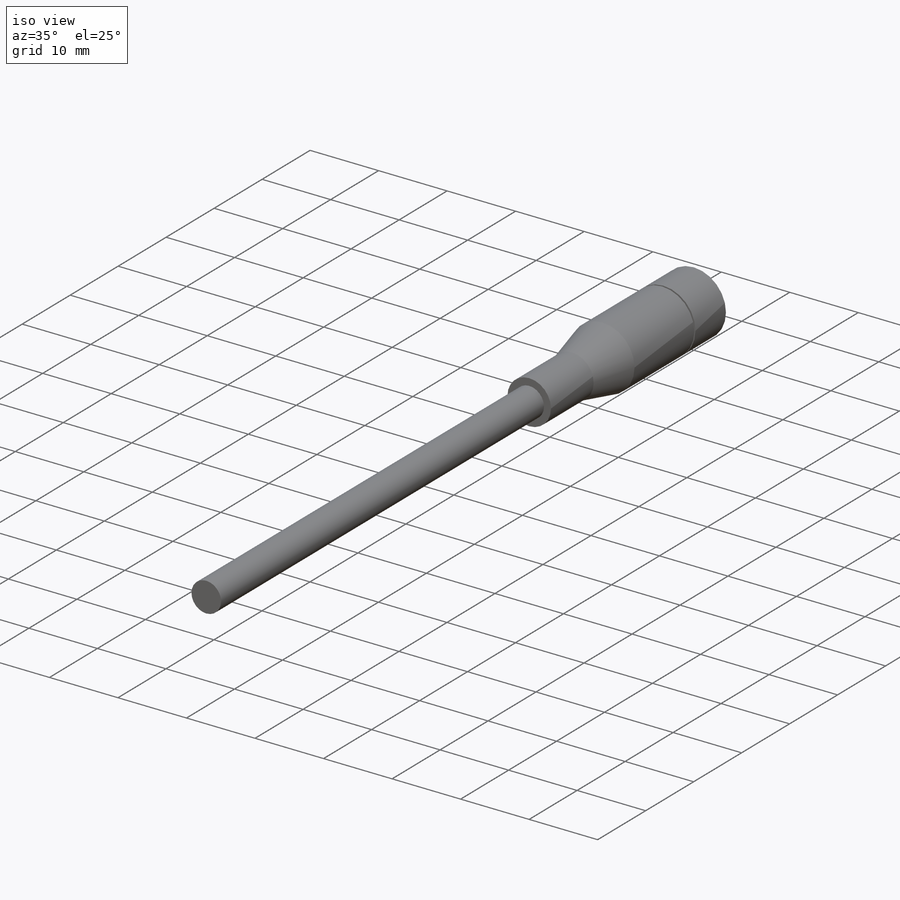
[diagram: iso view]
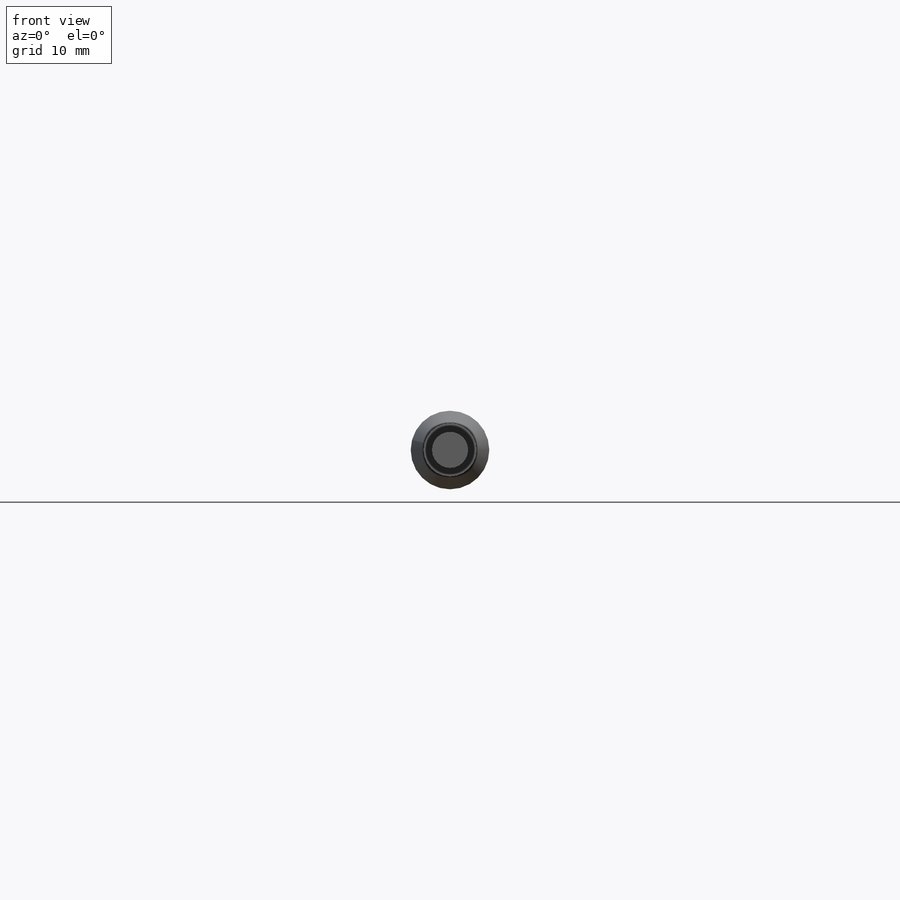
[diagram: front view]
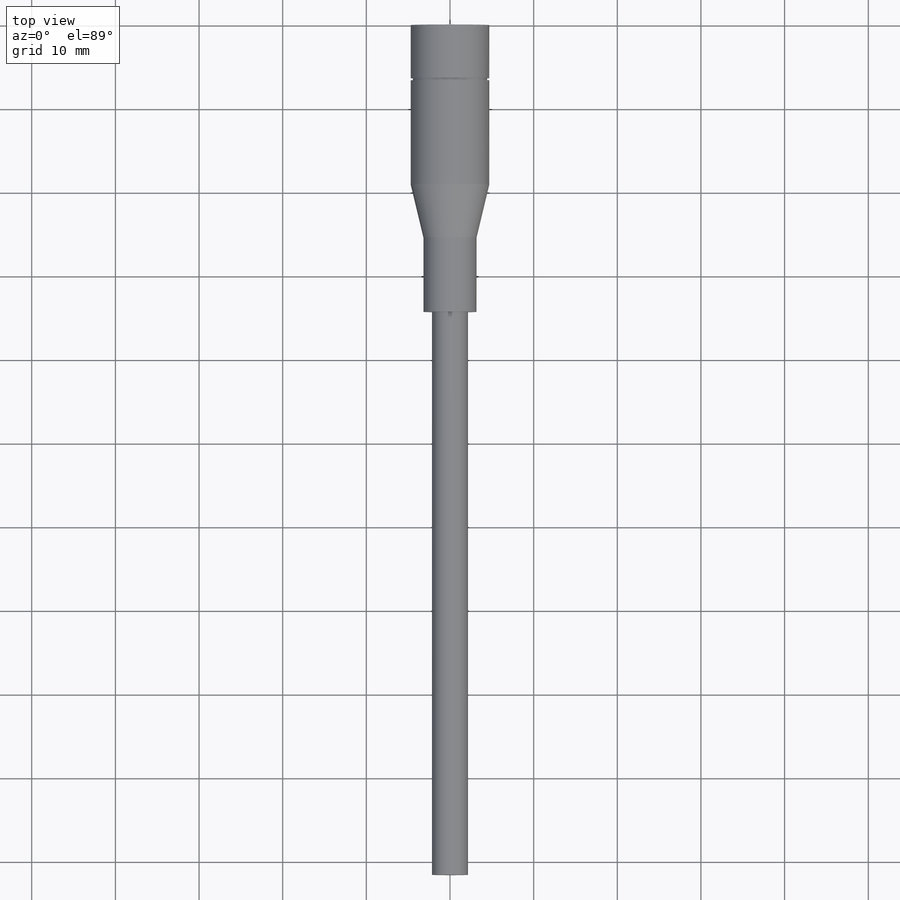
[diagram: top view]
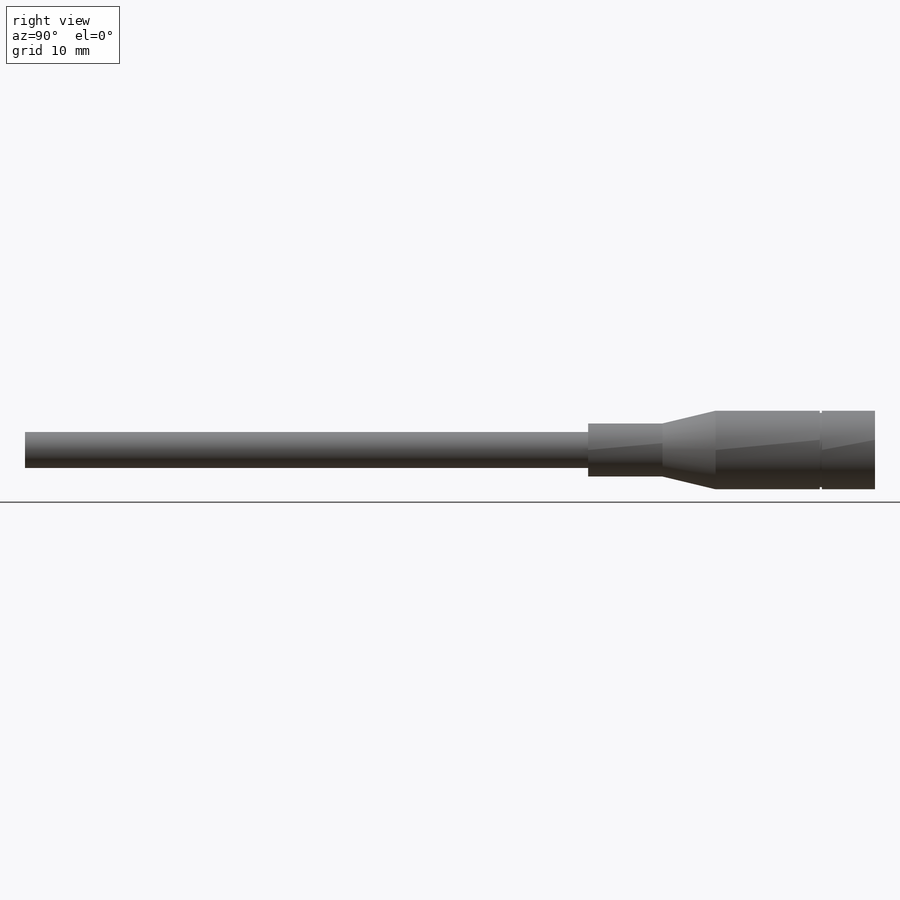
[diagram: right view]
SOLIDWORKS PART (.sldprt)
format: sldprt  version: not decoded by parser v0  size: 173,056 bytes
history: native  units: mm
features: sketch x3, material x1, revolve x1, extrude x1, cut_extrude x1 (+13 scaffold rows collapsed)
feature tree (20):
  scaffold x13  (default folders/planes/origin — collapsed)
  material  "PP Copolymer"
  sketch  "S2D0001"  dims[D1=9.398mm D2=0.254mm D3=8.89mm D4=6.35mm D5=34.29mm D6=6.35mm D7=8.89mm D8=19.05mm]
  revolve  "Revolve1"  Angle=360deg
  sketch  "Sketch2"  dims[D1=4.318mm]
  extrude  "Extrude1"  Depth=101.6mm
  sketch  "Sketch4"  dims[D1=7.874mm D2=6.35mm D3=5.08mm D4=0.762mm]
  cut_extrude  "Cut-Extrude2"  Depth=5.08mm
decode coverage: 6 of 6 modeling features carry decoded parameters
note: suppression state not decoded; provenance and decode notes live in map.json
